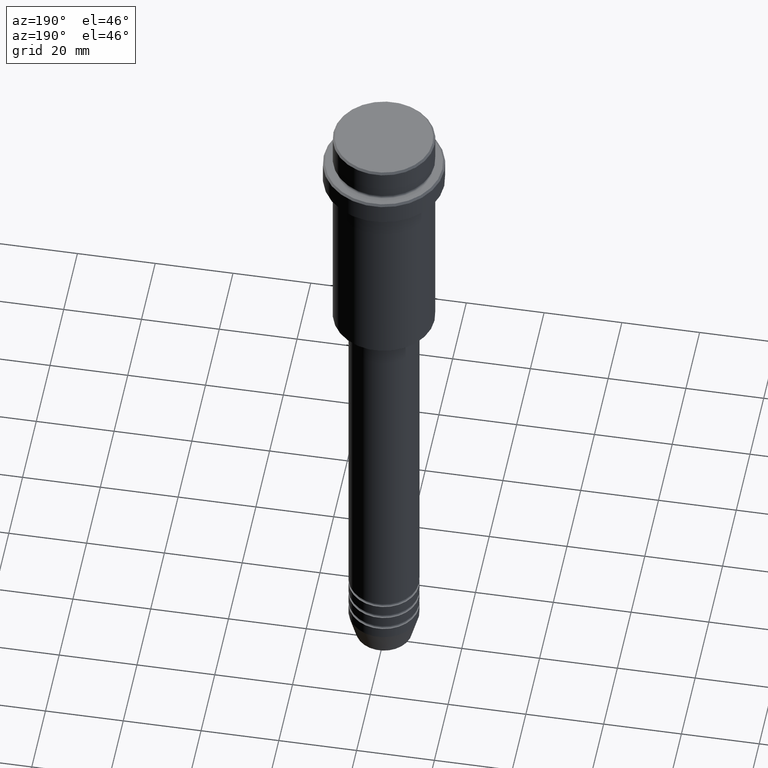
[diagram: clean part render]
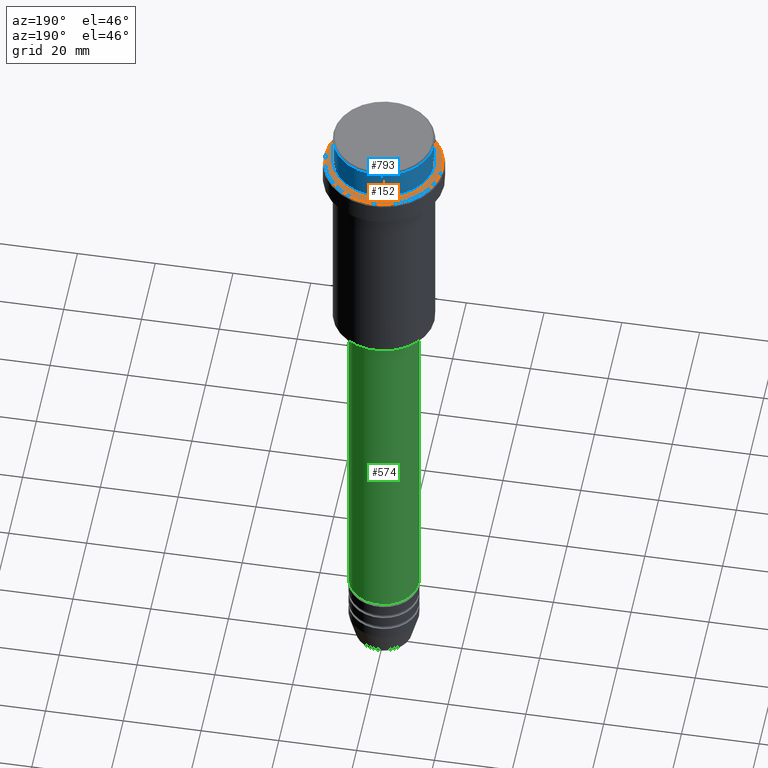
[diagram: same view with three faces highlighted in distinct colors, each labeled with its STEP entity id]
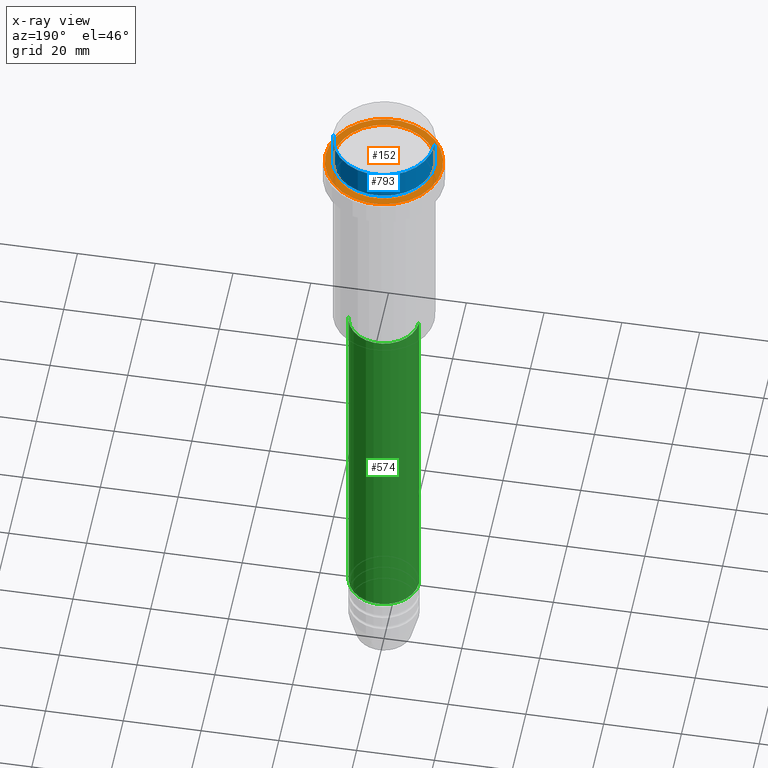
[diagram: x-ray of the same camera — body ghosted, the three highlighted faces saturated]
A machine part, auxiliary view with three faces highlighted in distinct colors.
The next image is the same camera in x-ray (body ghosted, the three faces saturated) — at least one of them is partly hidden behind the body in this view.
Their STEP definitions:

[orange] entity #152 — the highlighted planar face has unit normal (0, -0, 1).
#55 = DIRECTION ( 'NONE',  ( 0.000000000000000000, -0.000000000000000000, 1.000000000000000000 ) ) ;
#61 = AXIS2_PLACEMENT_3D ( 'NONE', #1246, #1258, #703 ) ;
#97 = EDGE_LOOP ( 'NONE', ( #1056, #233 ) ) ;
#148 = CIRCLE ( 'NONE', #921, 12.99999999999999467 ) ;
#152 = ADVANCED_FACE ( 'NONE', ( #1147, #367 ), #1152, .T. ) ;
#167 = CIRCLE ( 'NONE', #61, 14.99999999999998579 ) ;
#185 = CARTESIAN_POINT ( 'NONE',  ( -12.99999999999999467, 1.592040838891558504E-15, -8.999999999999987566 ) ) ;
#225 = VERTEX_POINT ( 'NONE', #829 ) ;
#233 = ORIENTED_EDGE ( 'NONE', *, *, #504, .T. ) ;
#243 = DIRECTION ( 'NONE',  ( 1.000000000000000000, 0.000000000000000000, 0.000000000000000000 ) ) ;
#257 = DIRECTION ( 'NONE',  ( 1.000000000000000000, 0.000000000000000000, 0.000000000000000000 ) ) ;
#326 = VERTEX_POINT ( 'NONE', #771 ) ;
#367 = FACE_BOUND ( 'NONE', #97, .T. ) ;
#413 = DIRECTION ( 'NONE',  ( -0.000000000000000000, -0.000000000000000000, 1.000000000000000000 ) ) ;
#414 = CARTESIAN_POINT ( 'NONE',  ( 0.000000000000000000, 0.000000000000000000, -8.999999999999987566 ) ) ;
#440 = CARTESIAN_POINT ( 'NONE',  ( 0.000000000000000000, 0.000000000000000000, -8.999999999999987566 ) ) ;
#446 = DIRECTION ( 'NONE',  ( 1.000000000000000000, 0.000000000000000000, 0.000000000000000000 ) ) ;
#504 = EDGE_CURVE ( 'NONE', #849, #1344, #148, .T. ) ;
#703 = DIRECTION ( 'NONE',  ( 1.000000000000000000, 0.000000000000000000, 0.000000000000000000 ) ) ;
#717 = EDGE_CURVE ( 'NONE', #1344, #849, #759, .T. ) ;
#759 = CIRCLE ( 'NONE', #895, 12.99999999999999467 ) ;
#771 = CARTESIAN_POINT ( 'NONE',  ( -14.99999999999998579, 0.000000000000000000, -8.999999999999987566 ) ) ;
#829 = CARTESIAN_POINT ( 'NONE',  ( 14.99999999999998579, 1.867586368699712587E-15, -8.999999999999987566 ) ) ;
#847 = DIRECTION ( 'NONE',  ( 0.000000000000000000, 0.000000000000000000, -1.000000000000000000 ) ) ;
#849 = VERTEX_POINT ( 'NONE', #185 ) ;
#868 = CIRCLE ( 'NONE', #1360, 14.99999999999998579 ) ;
#895 = AXIS2_PLACEMENT_3D ( 'NONE', #414, #847, #1287 ) ;
#908 = EDGE_CURVE ( 'NONE', #326, #225, #868, .T. ) ;
#921 = AXIS2_PLACEMENT_3D ( 'NONE', #440, #1003, #243 ) ;
#960 = EDGE_LOOP ( 'NONE', ( #1133, #1108 ) ) ;
#1003 = DIRECTION ( 'NONE',  ( 0.000000000000000000, 0.000000000000000000, -1.000000000000000000 ) ) ;
#1008 = CARTESIAN_POINT ( 'NONE',  ( 0.000000000000000000, 0.000000000000000000, -8.999999999999987566 ) ) ;
#1045 = EDGE_CURVE ( 'NONE', #225, #326, #167, .T. ) ;
#1056 = ORIENTED_EDGE ( 'NONE', *, *, #717, .T. ) ;
#1108 = ORIENTED_EDGE ( 'NONE', *, *, #1045, .T. ) ;
#1133 = ORIENTED_EDGE ( 'NONE', *, *, #908, .T. ) ;
#1147 = FACE_OUTER_BOUND ( 'NONE', #960, .T. ) ;
#1152 = PLANE ( 'NONE',  #1208 ) ;
#1166 = CARTESIAN_POINT ( 'NONE',  ( 0.000000000000000000, 12.49999999999999289, -8.999999999999987566 ) ) ;
#1208 = AXIS2_PLACEMENT_3D ( 'NONE', #1166, #55, #257 ) ;
#1246 = CARTESIAN_POINT ( 'NONE',  ( 0.000000000000000000, 0.000000000000000000, -8.999999999999987566 ) ) ;
#1258 = DIRECTION ( 'NONE',  ( -0.000000000000000000, -0.000000000000000000, 1.000000000000000000 ) ) ;
#1287 = DIRECTION ( 'NONE',  ( 1.000000000000000000, 0.000000000000000000, 0.000000000000000000 ) ) ;
#1344 = VERTEX_POINT ( 'NONE', #1354 ) ;
#1354 = CARTESIAN_POINT ( 'NONE',  ( 12.99999999999999467, 0.000000000000000000, -8.999999999999987566 ) ) ;
#1360 = AXIS2_PLACEMENT_3D ( 'NONE', #1008, #413, #446 ) ;

[blue] entity #793 — the highlighted cylindrical surface (partial cylindrical patch) has radius 13 mm, axis along (-0, -0, 1).
#7 = CARTESIAN_POINT ( 'NONE',  ( 12.99999999999999822, 0.000000000000000000, -0.5000000000000038858 ) ) ;
#107 = CYLINDRICAL_SURFACE ( 'NONE', #1262, 12.99999999999999822 ) ;
#125 = AXIS2_PLACEMENT_3D ( 'NONE', #1132, #347, #699 ) ;
#145 = CARTESIAN_POINT ( 'NONE',  ( -12.99999999999999822, 1.592040838891558898E-15, 0.000000000000000000 ) ) ;
#159 = EDGE_LOOP ( 'NONE', ( #813, #444, #888, #1309 ) ) ;
#212 = FACE_OUTER_BOUND ( 'NONE', #159, .T. ) ;
#290 = DIRECTION ( 'NONE',  ( 1.000000000000000000, 0.000000000000000000, 0.000000000000000000 ) ) ;
#343 = EDGE_CURVE ( 'NONE', #539, #972, #878, .T. ) ;
#347 = DIRECTION ( 'NONE',  ( -0.000000000000000000, -0.000000000000000000, 1.000000000000000000 ) ) ;
#380 = VECTOR ( 'NONE', #594, 1000.000000000000000 ) ;
#444 = ORIENTED_EDGE ( 'NONE', *, *, #1370, .T. ) ;
#484 = DIRECTION ( 'NONE',  ( 0.000000000000000000, 0.000000000000000000, -1.000000000000000000 ) ) ;
#519 = VERTEX_POINT ( 'NONE', #794 ) ;
#539 = VERTEX_POINT ( 'NONE', #1327 ) ;
#550 = CARTESIAN_POINT ( 'NONE',  ( 0.000000000000000000, 0.000000000000000000, 0.000000000000000000 ) ) ;
#593 = VECTOR ( 'NONE', #975, 1000.000000000000000 ) ;
#594 = DIRECTION ( 'NONE',  ( -0.000000000000000000, -0.000000000000000000, 1.000000000000000000 ) ) ;
#600 = CARTESIAN_POINT ( 'NONE',  ( 0.000000000000000000, 0.000000000000000000, -0.5000000000000038858 ) ) ;
#609 = DIRECTION ( 'NONE',  ( 1.000000000000000000, 0.000000000000000000, 0.000000000000000000 ) ) ;
#622 = CIRCLE ( 'NONE', #125, 12.99999999999999822 ) ;
#699 = DIRECTION ( 'NONE',  ( 1.000000000000000000, 0.000000000000000000, 0.000000000000000000 ) ) ;
#793 = ADVANCED_FACE ( 'NONE', ( #212 ), #107, .T. ) ;
#794 = CARTESIAN_POINT ( 'NONE',  ( -12.99999999999999822, 1.592040838891558898E-15, -7.999999999999998224 ) ) ;
#813 = ORIENTED_EDGE ( 'NONE', *, *, #1284, .T. ) ;
#863 = CIRCLE ( 'NONE', #983, 12.99999999999999822 ) ;
#878 = LINE ( 'NONE', #1286, #593 ) ;
#888 = ORIENTED_EDGE ( 'NONE', *, *, #1098, .T. ) ;
#972 = VERTEX_POINT ( 'NONE', #7 ) ;
#975 = DIRECTION ( 'NONE',  ( -0.000000000000000000, -0.000000000000000000, 1.000000000000000000 ) ) ;
#983 = AXIS2_PLACEMENT_3D ( 'NONE', #600, #484, #609 ) ;
#1098 = EDGE_CURVE ( 'NONE', #1146, #972, #863, .T. ) ;
#1132 = CARTESIAN_POINT ( 'NONE',  ( 0.000000000000000000, 0.000000000000000000, -7.999999999999998224 ) ) ;
#1138 = LINE ( 'NONE', #145, #380 ) ;
#1146 = VERTEX_POINT ( 'NONE', #1156 ) ;
#1156 = CARTESIAN_POINT ( 'NONE',  ( -12.99999999999999822, 1.592040838891558898E-15, -0.5000000000000038858 ) ) ;
#1262 = AXIS2_PLACEMENT_3D ( 'NONE', #550, #1383, #290 ) ;
#1284 = EDGE_CURVE ( 'NONE', #539, #519, #622, .T. ) ;
#1286 = CARTESIAN_POINT ( 'NONE',  ( 12.99999999999999822, 0.000000000000000000, 0.000000000000000000 ) ) ;
#1309 = ORIENTED_EDGE ( 'NONE', *, *, #343, .F. ) ;
#1327 = CARTESIAN_POINT ( 'NONE',  ( 12.99999999999999822, 0.000000000000000000, -7.999999999999998224 ) ) ;
#1370 = EDGE_CURVE ( 'NONE', #519, #1146, #1138, .T. ) ;
#1383 = DIRECTION ( 'NONE',  ( -0.000000000000000000, -0.000000000000000000, 1.000000000000000000 ) ) ;

[green] entity #574 — the highlighted cylindrical surface (edge-blend (fillet) strip) has radius 9 mm, axis along (-0, -0, 1).
#29 = DIRECTION ( 'NONE',  ( -0.000000000000000000, -0.000000000000000000, 1.000000000000000000 ) ) ;
#81 = CARTESIAN_POINT ( 'NONE',  ( 0.000000000000000000, 0.000000000000000000, -160.9999999999998579 ) ) ;
#82 = ORIENTED_EDGE ( 'NONE', *, *, #1019, .F. ) ;
#96 = DIRECTION ( 'NONE',  ( -0.000000000000000000, -0.000000000000000000, 1.000000000000000000 ) ) ;
#104 = CARTESIAN_POINT ( 'NONE',  ( -9.000000000000001776, 1.102182119232617911E-15, -66.00000000000000000 ) ) ;
#126 = AXIS2_PLACEMENT_3D ( 'NONE', #1247, #1351, #143 ) ;
#143 = DIRECTION ( 'NONE',  ( 1.000000000000000000, 0.000000000000000000, 0.000000000000000000 ) ) ;
#208 = DIRECTION ( 'NONE',  ( 1.000000000000000000, 0.000000000000000000, 0.000000000000000000 ) ) ;
#255 = CARTESIAN_POINT ( 'NONE',  ( 9.000000000000001776, 0.000000000000000000, 0.000000000000000000 ) ) ;
#266 = DIRECTION ( 'NONE',  ( -0.000000000000000000, -0.000000000000000000, 1.000000000000000000 ) ) ;
#283 = VERTEX_POINT ( 'NONE', #648 ) ;
#295 = CARTESIAN_POINT ( 'NONE',  ( 9.000000000000000000, 0.000000000000000000, -160.9999999999998579 ) ) ;
#299 = ORIENTED_EDGE ( 'NONE', *, *, #388, .T. ) ;
#302 = DIRECTION ( 'NONE',  ( -0.000000000000000000, -0.000000000000000000, 1.000000000000000000 ) ) ;
#336 = CIRCLE ( 'NONE', #375, 9.000000000000000000 ) ;
#345 = VERTEX_POINT ( 'NONE', #295 ) ;
#375 = AXIS2_PLACEMENT_3D ( 'NONE', #81, #266, #708 ) ;
#388 = EDGE_CURVE ( 'NONE', #283, #655, #526, .T. ) ;
#441 = EDGE_LOOP ( 'NONE', ( #729, #299, #562, #82 ) ) ;
#464 = LINE ( 'NONE', #255, #1275 ) ;
#525 = AXIS2_PLACEMENT_3D ( 'NONE', #1308, #96, #208 ) ;
#526 = LINE ( 'NONE', #1399, #1413 ) ;
#545 = CARTESIAN_POINT ( 'NONE',  ( 9.000000000000001776, 0.000000000000000000, -66.00000000000000000 ) ) ;
#562 = ORIENTED_EDGE ( 'NONE', *, *, #629, .F. ) ;
#574 = ADVANCED_FACE ( 'NONE', ( #1036 ), #929, .T. ) ;
#629 = EDGE_CURVE ( 'NONE', #1078, #655, #692, .T. ) ;
#648 = CARTESIAN_POINT ( 'NONE',  ( -9.000000000000000000, 1.102182119232617714E-15, -160.9999999999998579 ) ) ;
#655 = VERTEX_POINT ( 'NONE', #104 ) ;
#692 = CIRCLE ( 'NONE', #525, 9.000000000000001776 ) ;
#708 = DIRECTION ( 'NONE',  ( 1.000000000000000000, 0.000000000000000000, 0.000000000000000000 ) ) ;
#729 = ORIENTED_EDGE ( 'NONE', *, *, #804, .T. ) ;
#804 = EDGE_CURVE ( 'NONE', #345, #283, #336, .T. ) ;
#929 = CYLINDRICAL_SURFACE ( 'NONE', #126, 9.000000000000001776 ) ;
#1019 = EDGE_CURVE ( 'NONE', #345, #1078, #464, .T. ) ;
#1036 = FACE_OUTER_BOUND ( 'NONE', #441, .T. ) ;
#1078 = VERTEX_POINT ( 'NONE', #545 ) ;
#1247 = CARTESIAN_POINT ( 'NONE',  ( 0.000000000000000000, 0.000000000000000000, 0.000000000000000000 ) ) ;
#1275 = VECTOR ( 'NONE', #29, 1000.000000000000000 ) ;
#1308 = CARTESIAN_POINT ( 'NONE',  ( 0.000000000000000000, 0.000000000000000000, -66.00000000000000000 ) ) ;
#1351 = DIRECTION ( 'NONE',  ( -0.000000000000000000, -0.000000000000000000, 1.000000000000000000 ) ) ;
#1399 = CARTESIAN_POINT ( 'NONE',  ( -9.000000000000001776, 1.102182119232617911E-15, 0.000000000000000000 ) ) ;
#1413 = VECTOR ( 'NONE', #302, 1000.000000000000000 ) ;